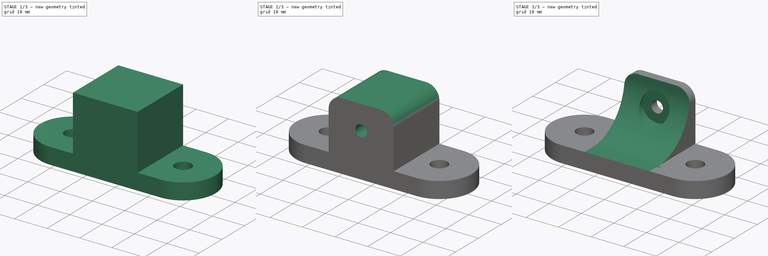
[diagram: build sequence overview — one tinted view per stage of 3, left to right]
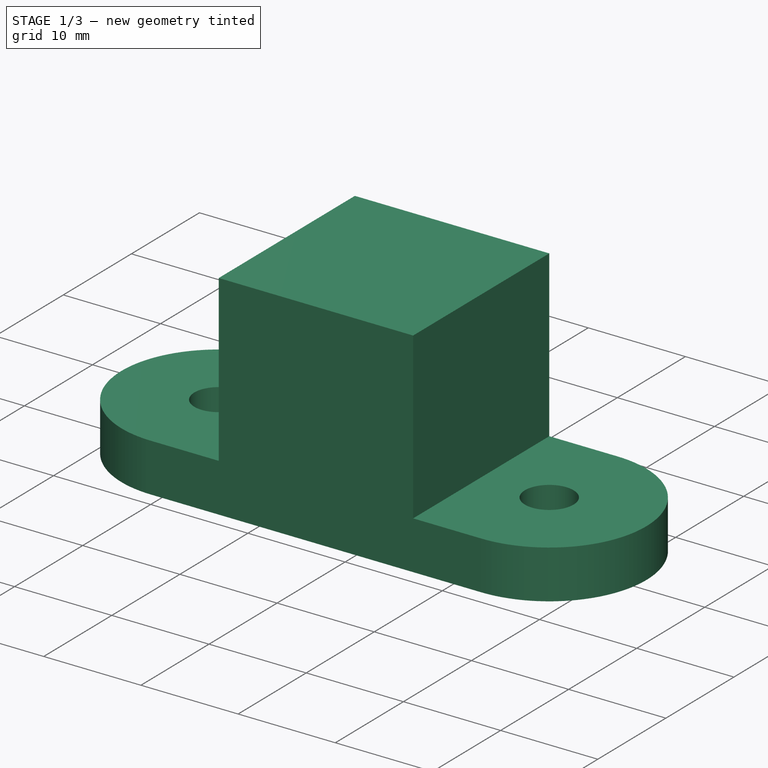
[diagram: stage 1 of 3 — iso view after this stage's code; geometry added in this stage tinted green]
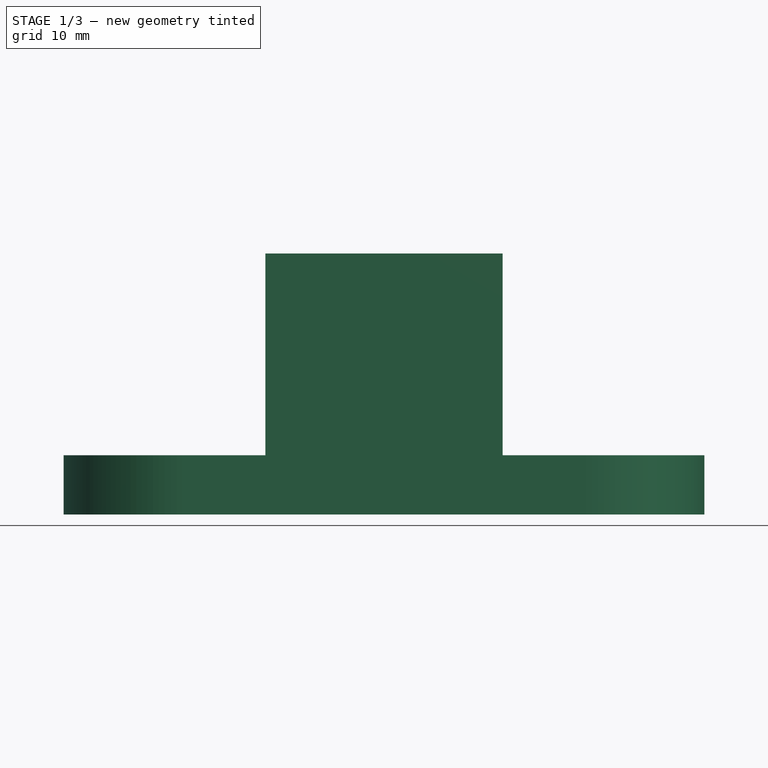
[diagram: stage 1 of 3 — front view after this stage's code; geometry added in this stage tinted green]
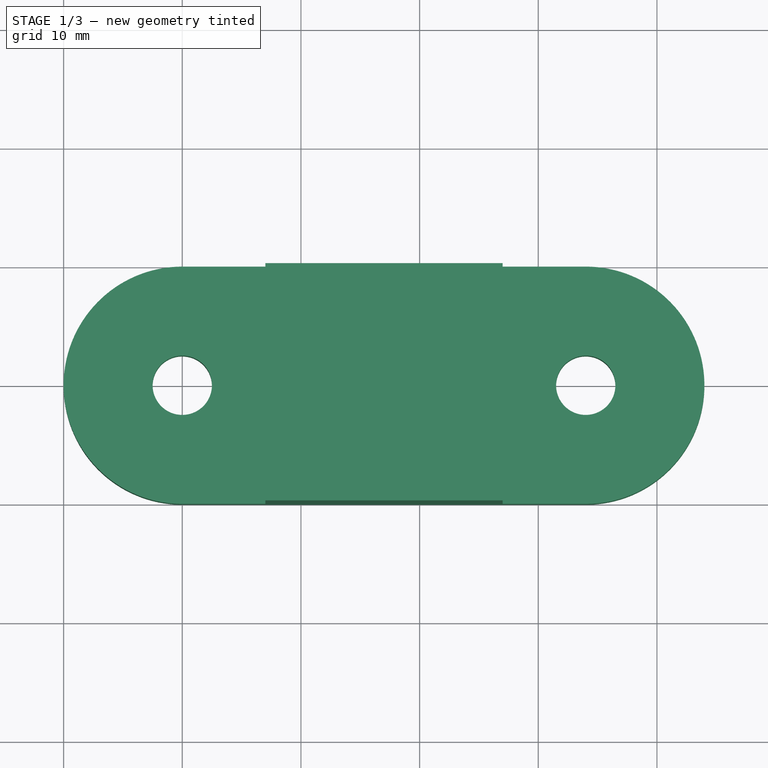
[diagram: stage 1 of 3 — top view after this stage's code; geometry added in this stage tinted green]
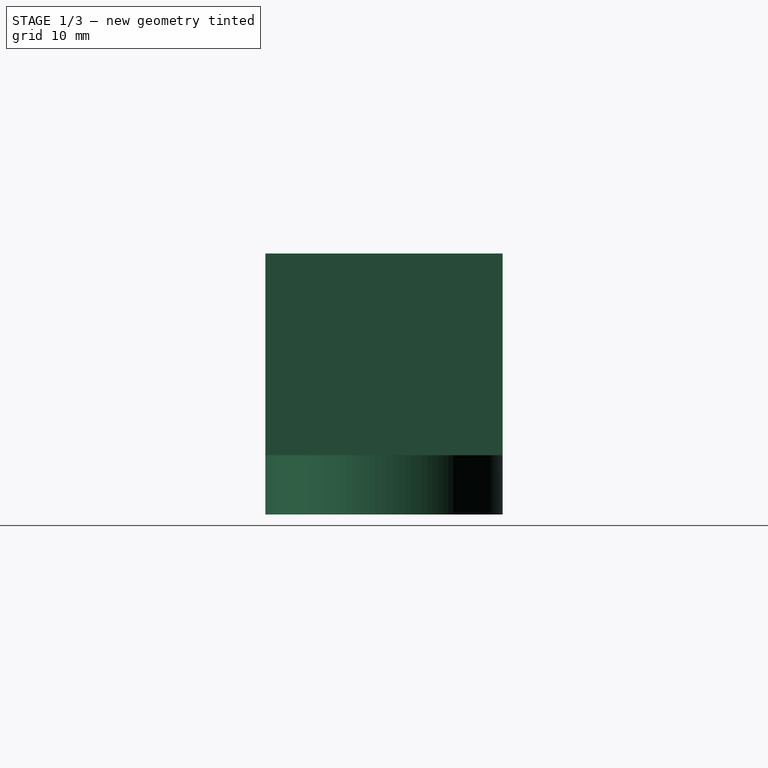
[diagram: stage 1 of 3 — right view after this stage's code; geometry added in this stage tinted green]
FCSTD DOCUMENT
Label: 12v30aPSMount
objects: Sketcher::SketchObject×5, PartDesign::Pocket×3, PartDesign::Pad×2, Part::Feature×1
note: 13 computed .brp shape members not serialized (recipe doc carries the construction recipe); baked Part::Feature solids carry a one-line shape summary decoded from their .brp

FEATURE [Sketcher::SketchObject] Sketch
  sketch-geometry (7):
    g0: ArcOfCircle CenterX=10 CenterY=10 CenterZ=0 NormalX=0 NormalY=0 NormalZ=1 Radius=10 StartAngle=1.5708 EndAngle=4.71239
    g1: ArcOfCircle CenterX=44 CenterY=10 CenterZ=0 NormalX=0 NormalY=0 NormalZ=1 Radius=10 StartAngle=4.71239 EndAngle=7.85398
    g2: LineSegment StartX=9.99999 StartY=20 StartZ=0 EndX=44 EndY=20 EndZ=0
    g3: LineSegment StartX=10 StartY=0 StartZ=0 EndX=44 EndY=0 EndZ=0
    g4: LineSegment [constr] StartX=10 StartY=10 StartZ=0 EndX=44 EndY=10 EndZ=0
    g5: Circle CenterX=10 CenterY=10 CenterZ=0 NormalX=0 NormalY=0 NormalZ=1 Radius=2.5
    g6: Circle CenterX=44 CenterY=10 CenterZ=0 NormalX=0 NormalY=0 NormalZ=1 Radius=2.5
  constraints (20):
    c: Horizontal(g2)
    c: Horizontal(g3)
    c: Coincident(g3,g0)
    c: Coincident(g3,g1)
    c: Coincident(g1,g2)
    c: Coincident(g2,g0)
    c: Horizontal(g4)
    c: Coincident(g4,g1)
    c: Coincident(g4,g0)
    c: Equal(g2,g4)
    c: Equal(g6,g5)
    c: Coincident(g6,g1)
    c: Coincident(g5,g0)
    c: Radius(g5) = 2.5
    c: Radius(g0) = 10
    c: DistanceX(g2) = 34
    c: DistanceX(g0) = 10
    c: DistanceY(g0) = 0
    c: Tangent(g0,g2)
    c: Tangent(g0,g3)
FEATURE [PartDesign::Pad] Pad
  Length = 5
  MirroredExtent = false
  Sketch = -> Sketch
FEATURE [Sketcher::SketchObject] Sketch001
  Placement = pos=(0,0,5) rot=(0,0,1;0rad)
  Support = -> Pad [Face8]
  sketch-geometry (4):
    g0: LineSegment StartX=17 StartY=20 StartZ=0 EndX=37 EndY=20 EndZ=0
    g1: LineSegment StartX=37 StartY=20 StartZ=0 EndX=37 EndY=0 EndZ=0
    g2: LineSegment StartX=37 StartY=0 StartZ=0 EndX=17 EndY=0 EndZ=0
    g3: LineSegment StartX=17 StartY=0 StartZ=0 EndX=17 EndY=20 EndZ=0
  constraints (12):
    c: Coincident(g0,g1)
    c: Coincident(g1,g2)
    c: Coincident(g2,g3)
    c: Coincident(g3,g0)
    c: Horizontal(g0)
    c: Horizontal(g2)
    c: Vertical(g1)
    c: Vertical(g3)
    c: DistanceX(g2) = -20
    c: DistanceX(g2) = 17
    c: DistanceY(g2) = 0
    c: DistanceY(g1) = -20
FEATURE [Part::Feature] B00GI8ZPW6_3D
  Placement = pos=(10,10,-23) rot=(1,0,0;3.14159rad)
  shape: bbox 9.43 x 9.398 x 34.16 mm, 84 faces (baked)
FEATURE [PartDesign::Pad] Pad001
  Length = 17
  MirroredExtent = false
  Sketch = -> Sketch001
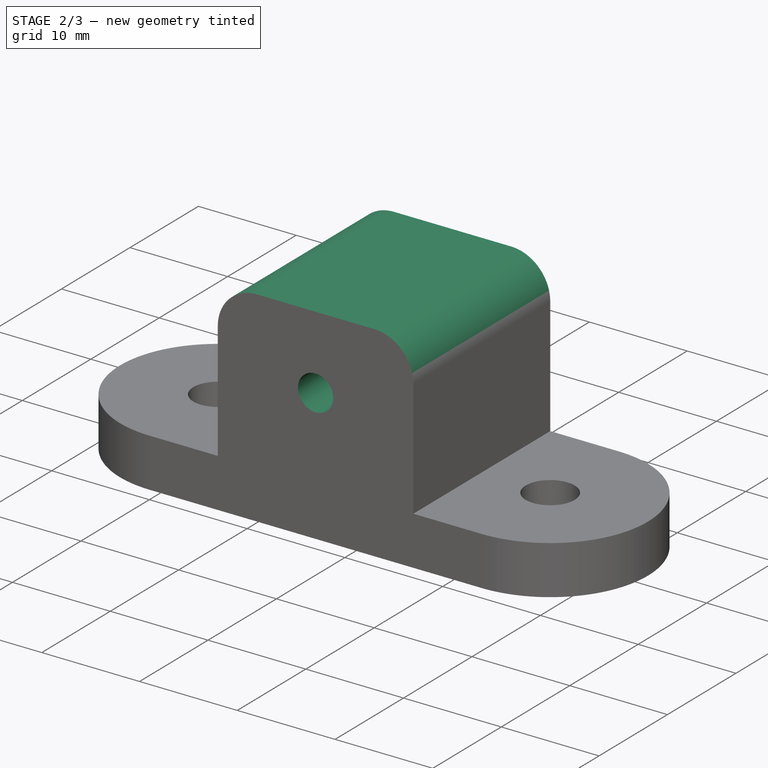
[diagram: stage 2 of 3 — iso view after this stage's code; geometry added in this stage tinted green]
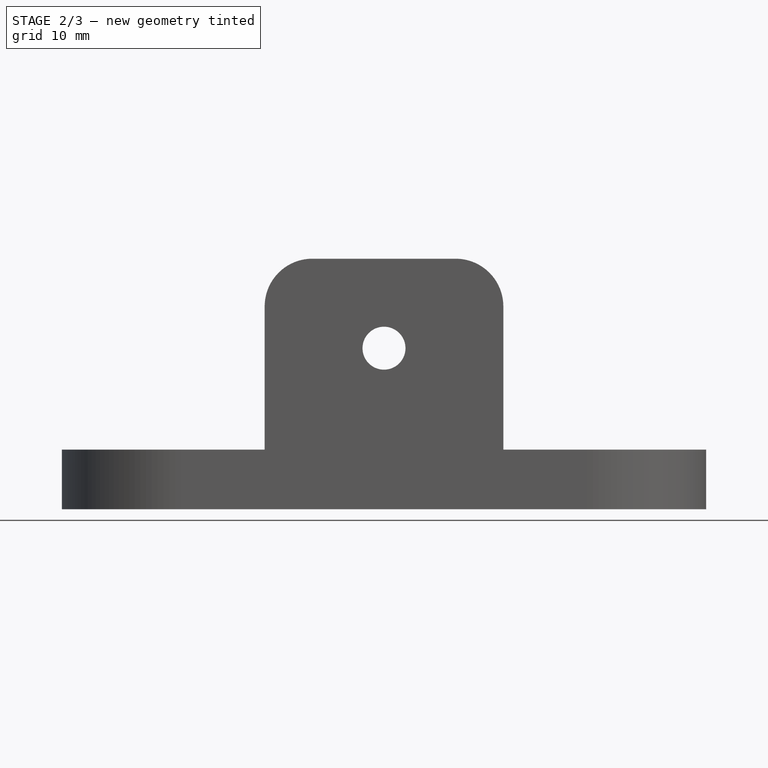
[diagram: stage 2 of 3 — front view after this stage's code; geometry added in this stage tinted green]
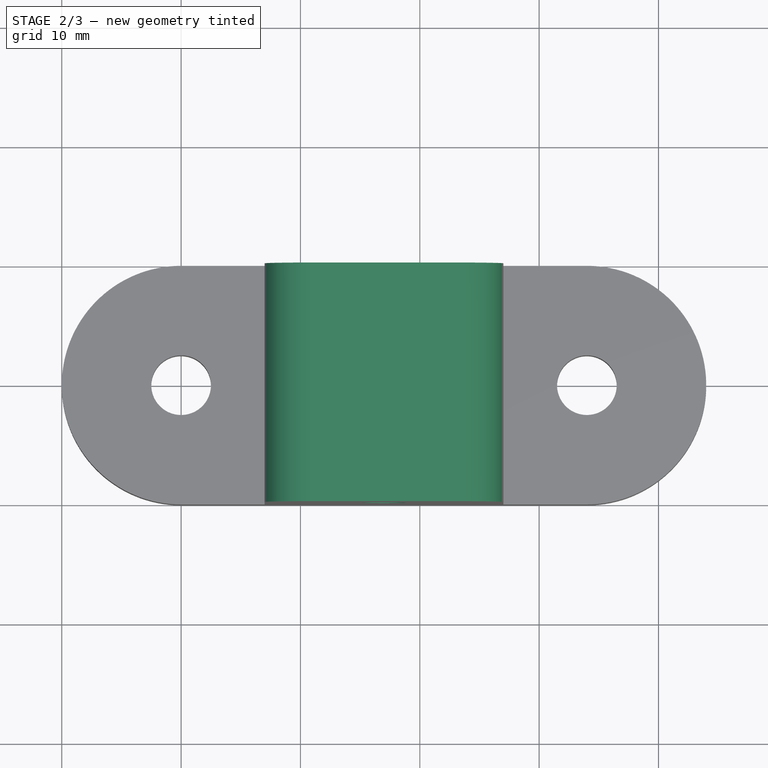
[diagram: stage 2 of 3 — top view after this stage's code; geometry added in this stage tinted green]
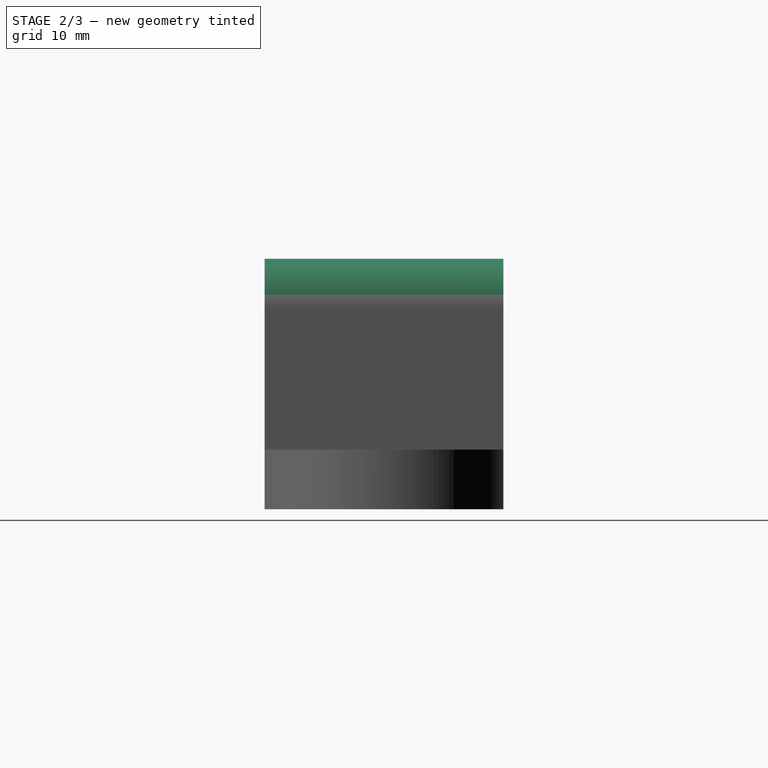
[diagram: stage 2 of 3 — right view after this stage's code; geometry added in this stage tinted green]
FEATURE [Sketcher::SketchObject] Sketch003
  Placement = pos=(0,0,0) rot=(1,0,0;1.5708rad)
  Support = -> Pad001 [Face9]
  sketch-geometry (10):
    g0: Circle CenterX=27 CenterY=13.5 CenterZ=0 NormalX=0 NormalY=0 NormalZ=1 Radius=1.8
    g1: ArcOfCircle CenterX=21 CenterY=17 CenterZ=0 NormalX=0 NormalY=0 NormalZ=1 Radius=4 StartAngle=1.5708 EndAngle=3.14159
    g2: ArcOfCircle CenterX=33 CenterY=17 CenterZ=0 NormalX=0 NormalY=0 NormalZ=1 Radius=4 StartAngle=0 EndAngle=1.5708
    g3: LineSegment [constr] StartX=17 StartY=17 StartZ=0 EndX=21 EndY=17 EndZ=0
    g4: LineSegment [constr] StartX=21 StartY=17 StartZ=0 EndX=33 EndY=17 EndZ=0
    g5: LineSegment [constr] StartX=33 StartY=17 StartZ=0 EndX=37 EndY=17 EndZ=0
    g6: LineSegment StartX=37 StartY=17 StartZ=0 EndX=37 EndY=22 EndZ=0
    g7: LineSegment StartX=37 StartY=22 StartZ=0 EndX=17 EndY=22 EndZ=0
    g8: LineSegment StartX=17 StartY=22 StartZ=0 EndX=17 EndY=17 EndZ=0
    g9: LineSegment StartX=21 StartY=21 StartZ=0 EndX=33 EndY=21 EndZ=0
  constraints (29):
    c: Radius(g0) = 1.8
    c: DistanceX(g0) = 27
    c: DistanceY(g0) = 13.5
    c: Horizontal(g3)
    c: Coincident(g3,g4)
    c: Horizontal(g4)
    c: Coincident(g4,g5)
    c: Horizontal(g5)
    c: Coincident(g5,g6)
    c: Vertical(g6)
    c: Coincident(g6,g7)
    c: Horizontal(g7)
    c: Coincident(g7,g8)
    c: Vertical(g8)
    c: Coincident(g3,g8)
    c: Coincident(g1,g3)
    c: Coincident(g3,g1)
    c: Coincident(g4,g2)
    c: Coincident(g2,g5)
    c: Horizontal(g9)
    c: Coincident(g9,g2)
    c: Coincident(g1,g9)
    c: Tangent(g1,g9)
    c: Tangent(g9,g2)
    c: DistanceX(g7) = -20
    c: Radius(g2) = 4
    c: DistanceY(g6) = 5
    c: DistanceX(g7) = 17
    c: DistanceY(g7) = 22
FEATURE [PartDesign::Pocket] Pocket
  Length = 20
  Sketch = -> Sketch003
  Type = 0
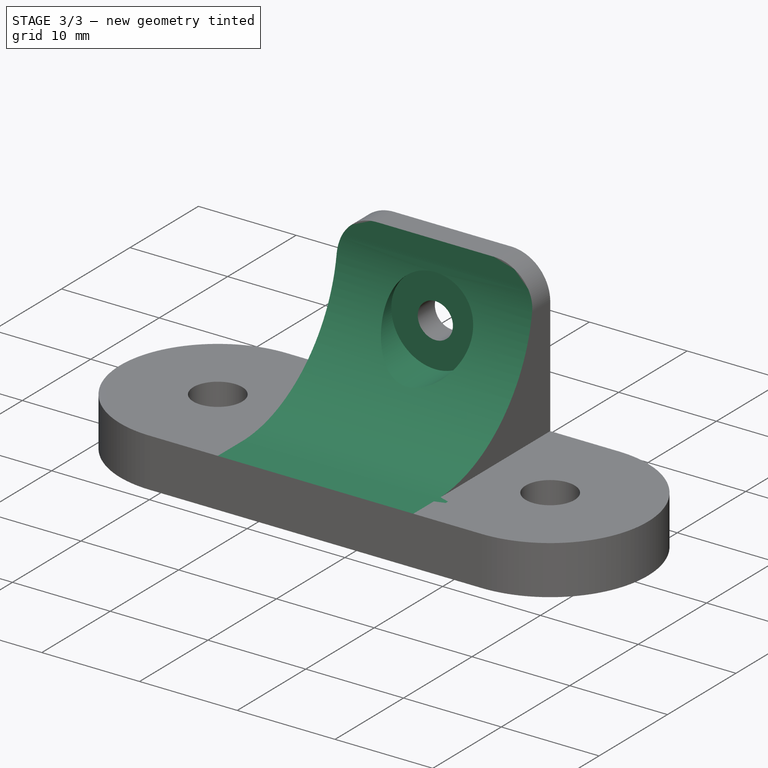
[diagram: stage 3 of 3 — iso view after this stage's code; geometry added in this stage tinted green]
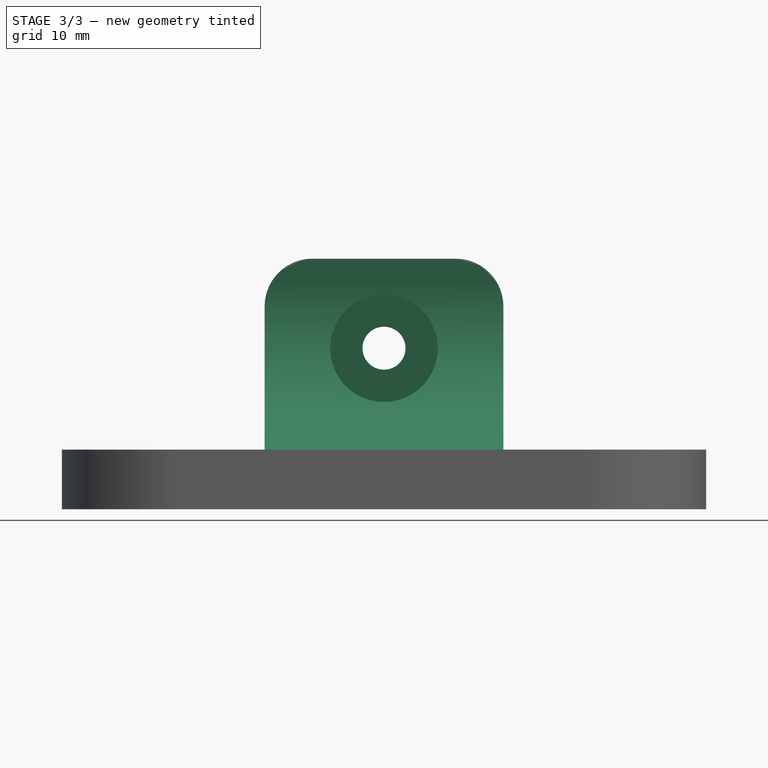
[diagram: stage 3 of 3 — front view after this stage's code; geometry added in this stage tinted green]
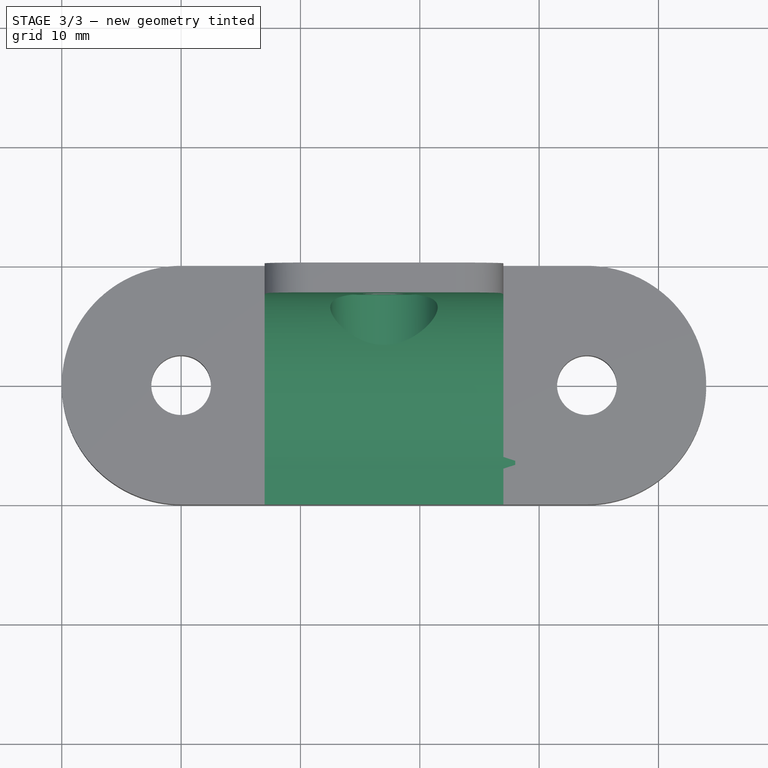
[diagram: stage 3 of 3 — top view after this stage's code; geometry added in this stage tinted green]
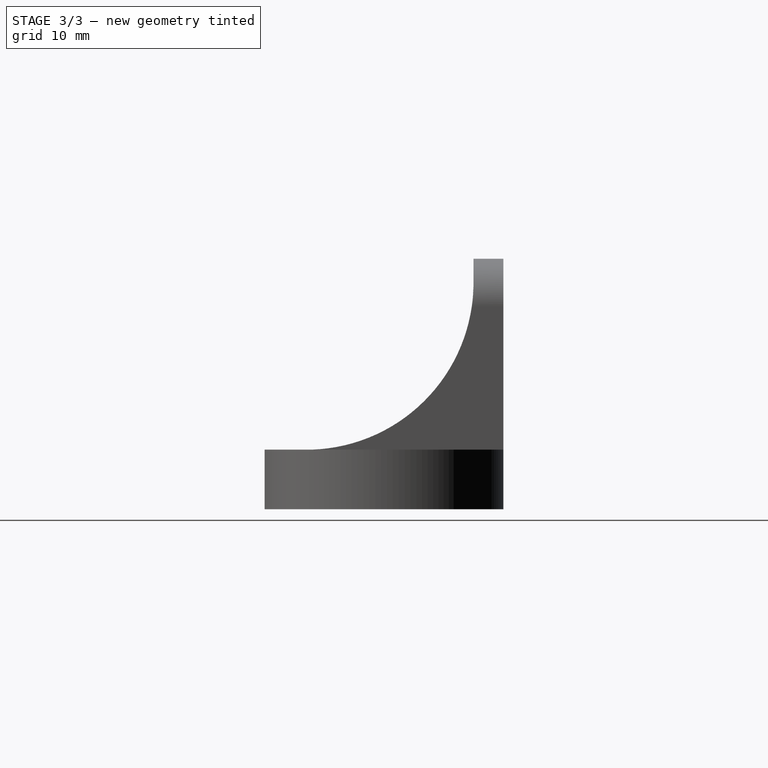
[diagram: stage 3 of 3 — right view after this stage's code; geometry added in this stage tinted green]
FEATURE [Sketcher::SketchObject] Sketch002
  Placement = pos=(0,0,0) rot=(1,0,0;1.5708rad)
  Support = -> Pocket [Face9]
  sketch-geometry (1):
    g0: Circle CenterX=27 CenterY=13.5 CenterZ=0 NormalX=0 NormalY=0 NormalZ=1 Radius=4.5
  constraints (3):
    c: Radius(g0) = 4.5
    c: DistanceX(g0) = 27
    c: DistanceY(g0) = 13.5
FEATURE [PartDesign::Pocket] Pocket001
  Length = 17.5
  Sketch = -> Sketch002
  Type = 0
FEATURE [Sketcher::SketchObject] Sketch004
  Placement = pos=(37,0,0) rot=(0.57735,0.57735,0.57735;2.0944rad)
  Support = -> Pocket001 [Face13]
  sketch-geometry (5):
    g0: LineSegment StartX=3 StartY=5 StartZ=0 EndX=0 EndY=5 EndZ=0
    g1: LineSegment StartX=17.5 StartY=22 StartZ=0 EndX=17.5 EndY=19 EndZ=0
    g2: ArcOfCircle CenterX=3.49138 CenterY=19 CenterZ=0 NormalX=0 NormalY=0 NormalZ=1 Radius=14.0086 StartAngle=4.67731 EndAngle=6.28319
    g3: LineSegment StartX=17.5 StartY=22 StartZ=0 EndX=0 EndY=22 EndZ=0
    g4: LineSegment StartX=0 StartY=22 StartZ=0 EndX=0 EndY=5 EndZ=0
  constraints (16):
    c: Horizontal(g0)
    c: Vertical(g1)
    c: Coincident(g2,g1)
    c: Coincident(g2,g0)
    c: Equal(g1,g0)
    c: Horizontal(g3)
    c: Vertical(g4)
    c: Coincident(g0,g4)
    c: Coincident(g3,g4)
    c: Coincident(g1,g3)
    c: DistanceX(g0) = 0
    c: DistanceY(g0) = 5
    c: DistanceY(g4) = -17
    c: Tangent(g2,g1)
    c: DistanceY(g1) = -3
    c: DistanceX(g3) = -17.5
FEATURE [PartDesign::Pocket] Pocket002
  Length = 20
  Sketch = -> Sketch004
  Type = 0
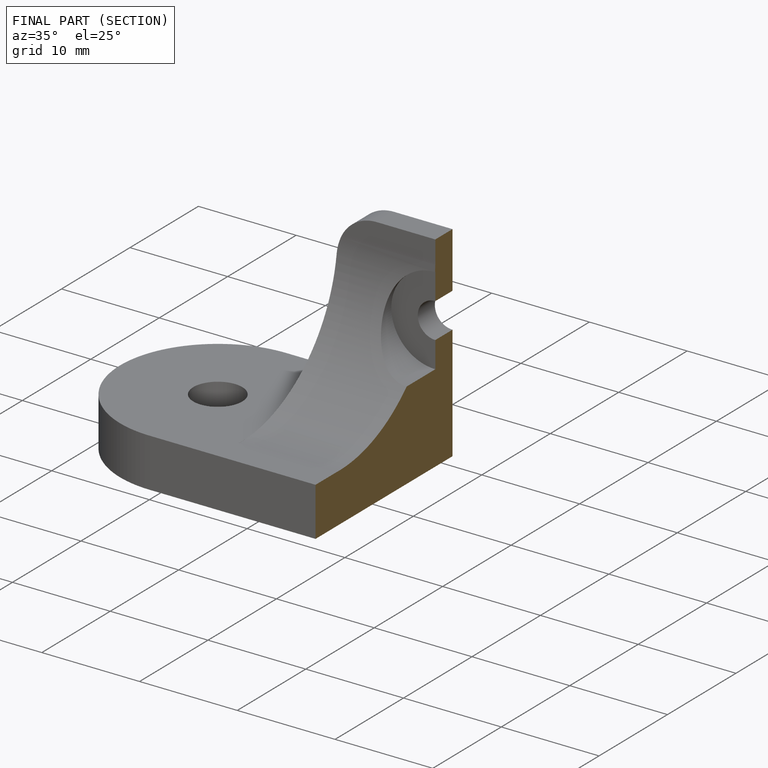
[diagram: finished part — half-section view (interior)]
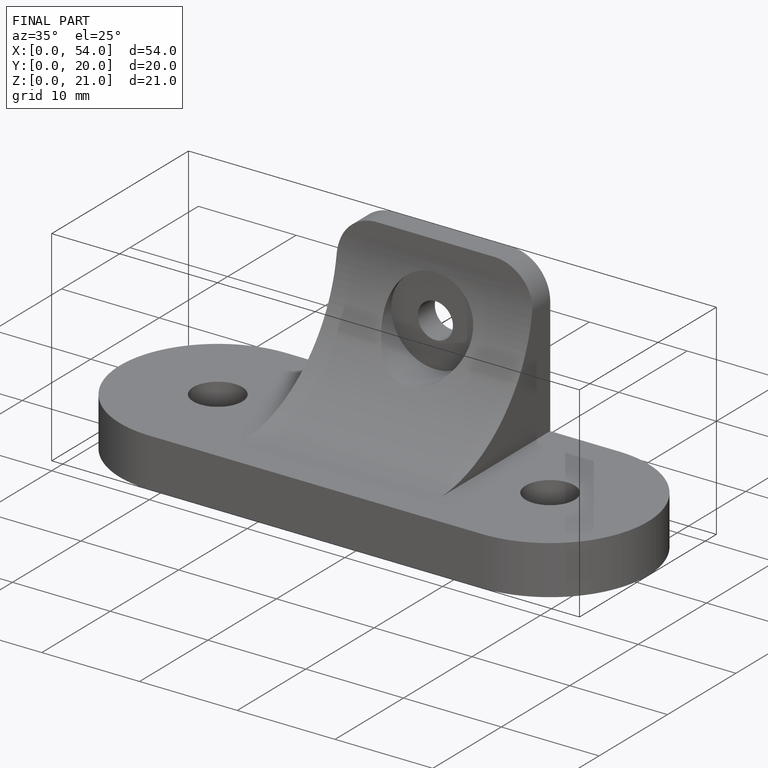
[diagram: finished part — iso view with bounding-box wireframe]
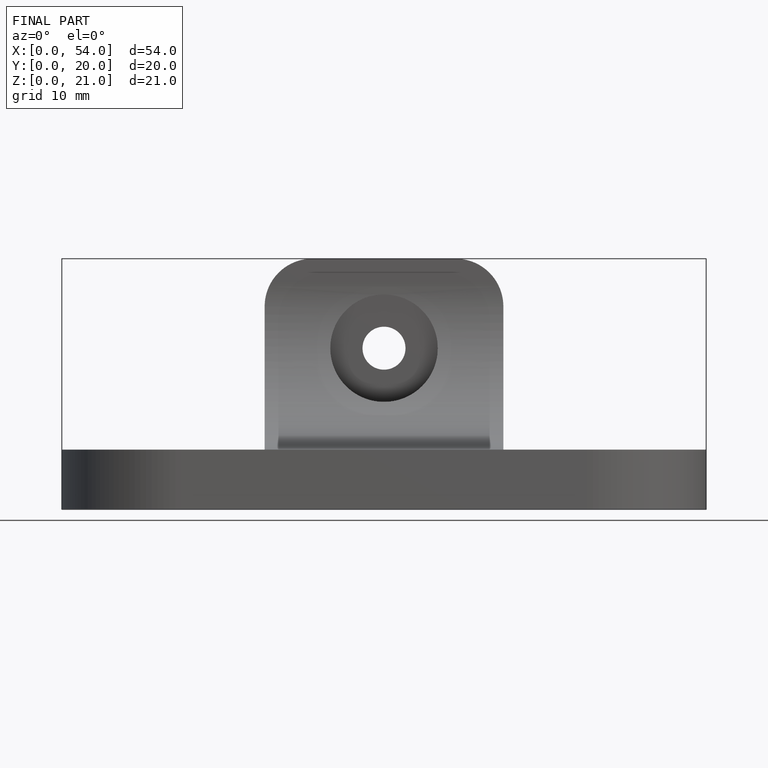
[diagram: finished part — front view with bounding-box wireframe]
